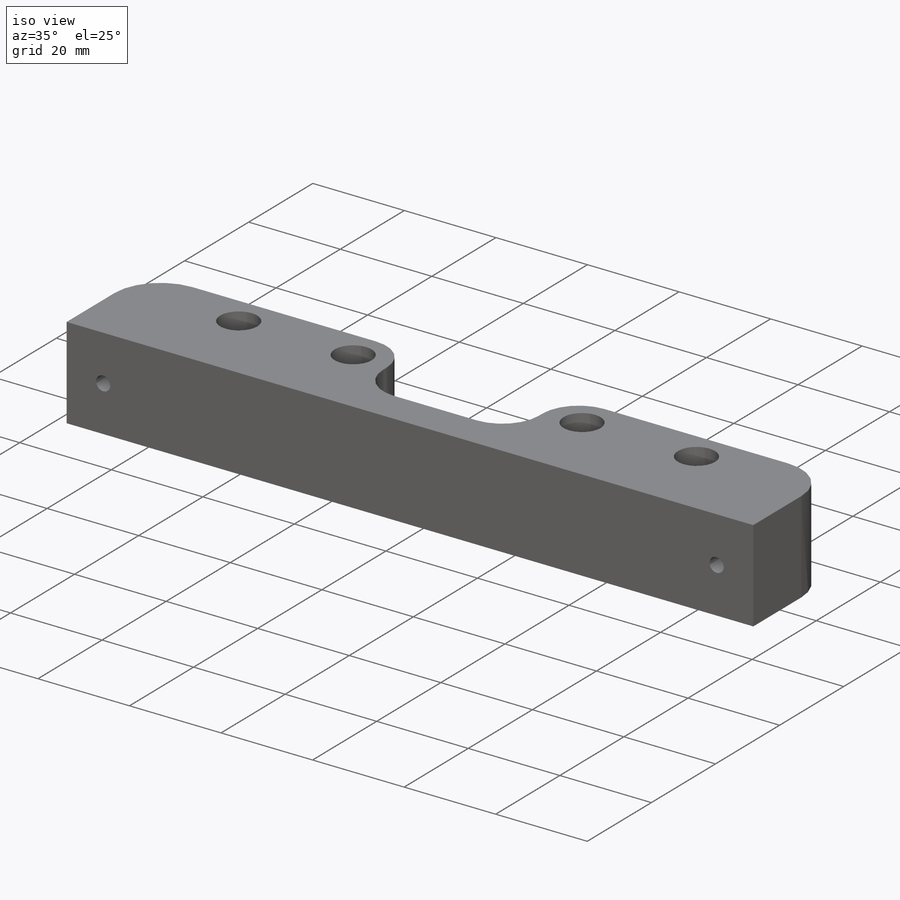
[diagram: iso view]
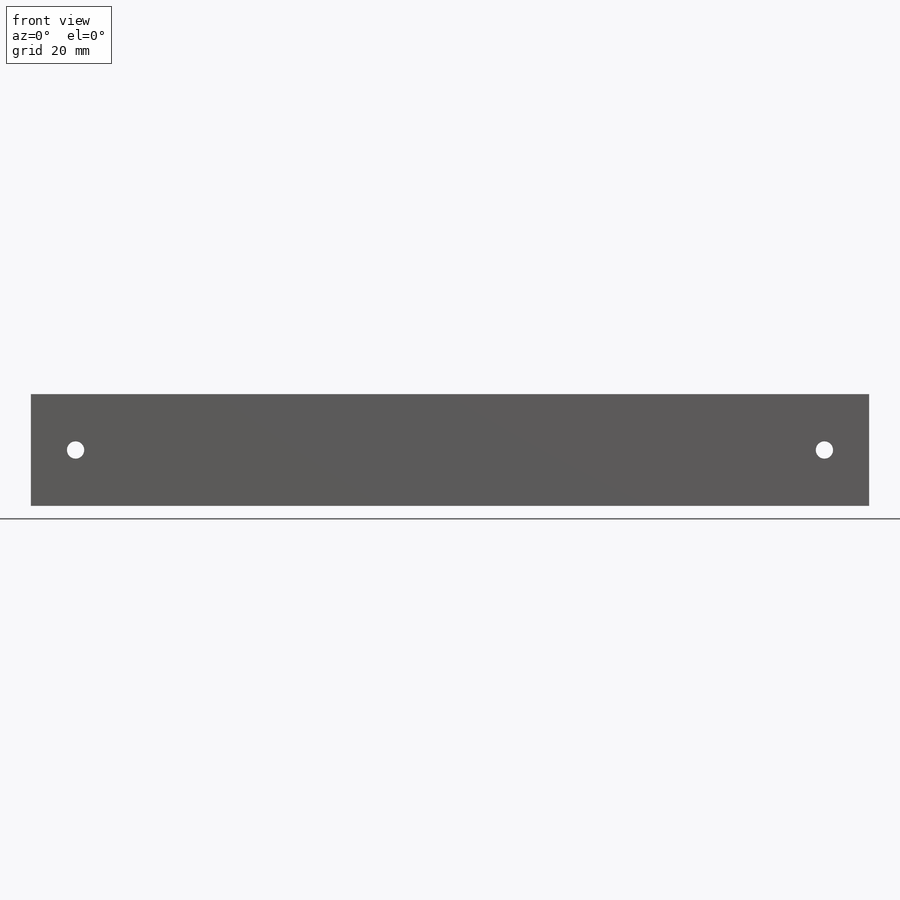
[diagram: front view]
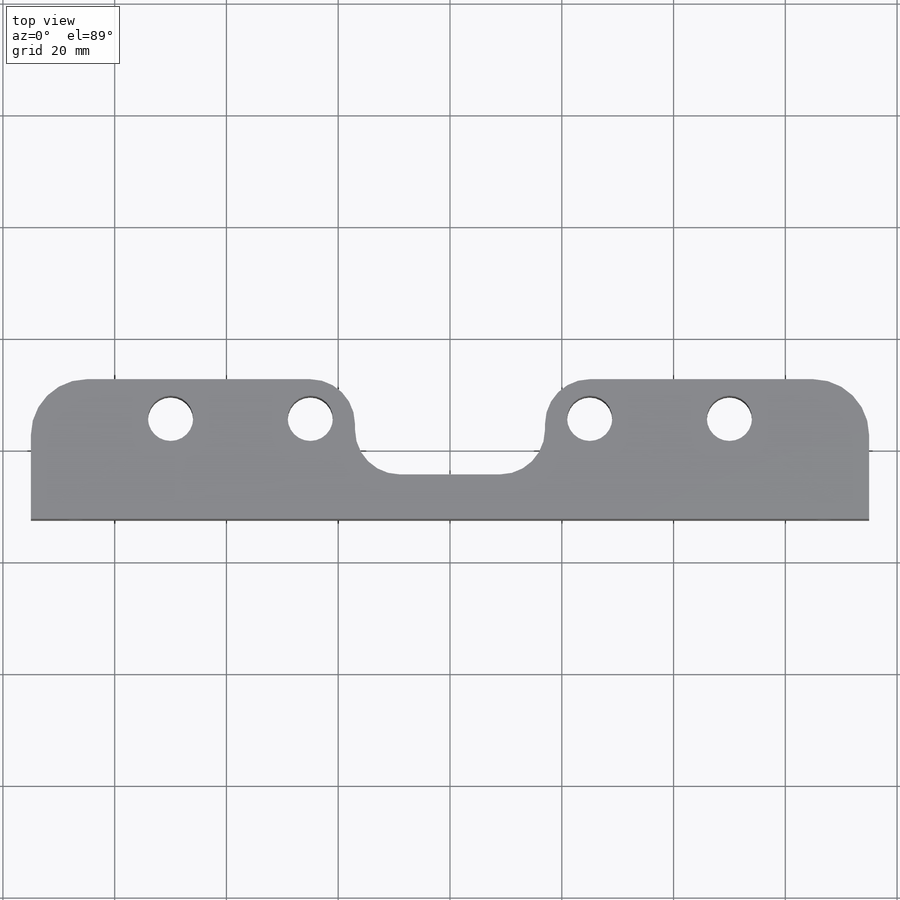
[diagram: top view]
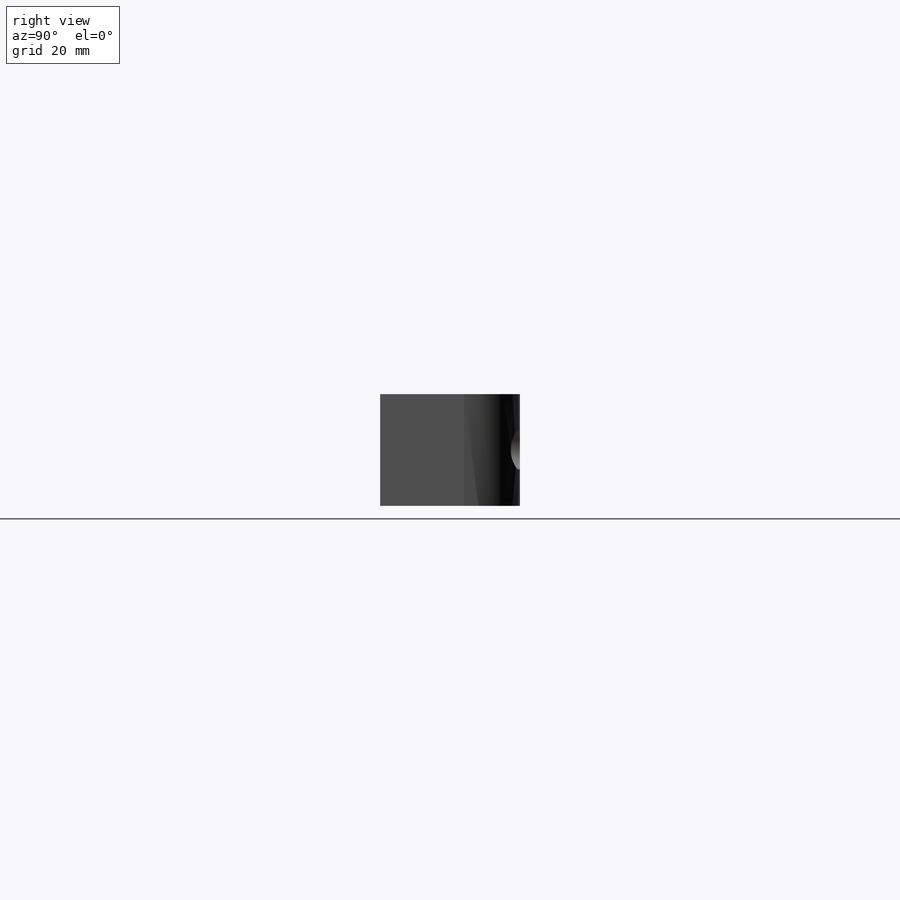
[diagram: right view]
SOLIDWORKS PART (.sldprt)
format: sldprt  version: not decoded by parser v0  size: 204,288 bytes
history: native  units: mm
features: sketch x4, cut_extrude x3, fillet x2, material x1, extrude x1 (+13 scaffold rows collapsed)
feature tree (24):
  scaffold x13  (default folders/planes/origin — collapsed)
  material  "Material <not specified>"
  sketch  "Sketch1"  dims[D1=8.1mm D2=50.0mm D3=25.0mm D4=25.0mm D5=18.0mm D6=150.0mm D7=25.0mm D8=25.0mm D9=11.15mm]
  extrude  "Boss-Extrude1"  Depth=20mm
  fillet  "Fillet1"  Radius=10mm
  sketch  "Sketch3"  dims[c1.D1=3.1mm c1.D2=~6.753999mm c1.D5=7.0mm c2.D2=2.0mm c2.D3=2.0mm c2.D4=10.0mm]
  cut_extrude  "Cut-Extrude1"  [1 undecoded]
  cut_extrude  "Cut-Extrude2"  [1 undecoded]
  sketch  "Sketch3<3>"  dims[D1=3.0mm]
  sketch  "Sketch4"  dims[c1.D2=10.0mm c1.D1=35.0mm c2.D2=0.0mm c2.D1=8.0mm c3.D2=34.0mm c3.D3=~34.075618mm]
  cut_extrude  "Cut-Extrude3"  [1 undecoded]
  fillet  "Fillet2"  Radius=8mm
decode coverage: 7 of 10 modeling features carry decoded parameters
note: ~ marks probable driven/reference dimensions
note: 3 parameter values undecoded
summary: no parameter record found for 3 features
note: suppression state not decoded; provenance and decode notes live in map.json
